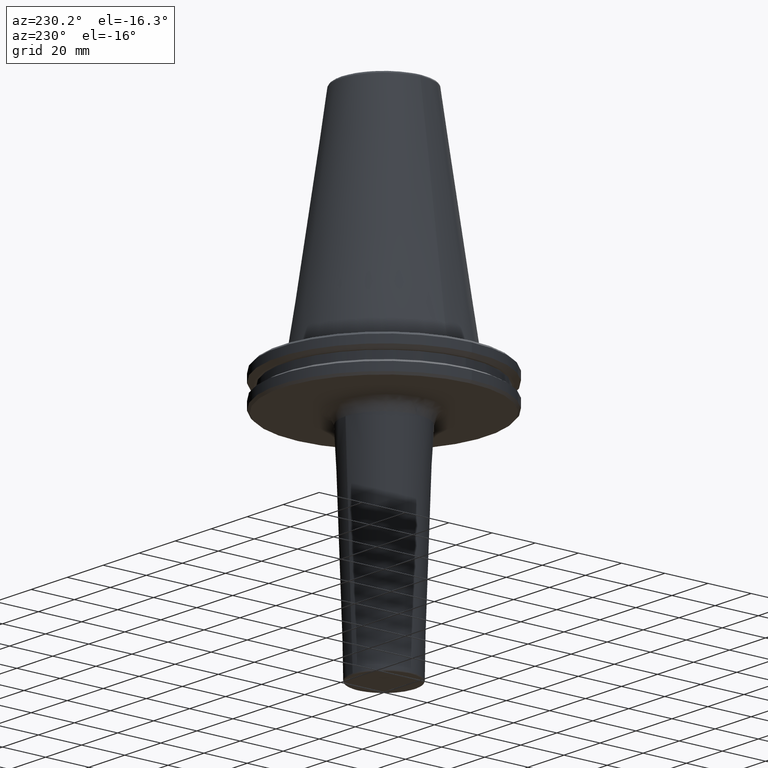
[diagram: clean part render]
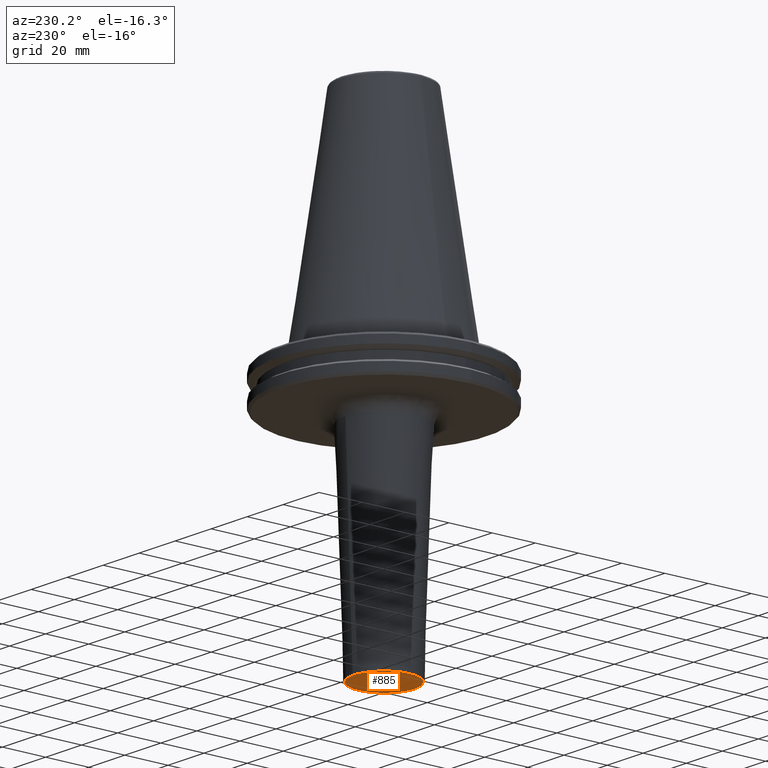
[diagram: same view with one face highlighted and labeled with its STEP entity id]
A machine part, auxiliary view. The second image highlights one B-rep face of the part: STEP entity #885.
In plain terms, the highlighted planar face has unit normal (0, 0, -1).
Its self-contained STEP definition (entity closure, byte-faithful):
#25 =( BOUNDED_CURVE ( )  B_SPLINE_CURVE ( 3, ( #1402, #123, #710, #1563 ),
 .UNSPECIFIED., .F., .F. ) 
 B_SPLINE_CURVE_WITH_KNOTS ( ( 4, 4 ),
 ( 0.0000000000000000000, 1.000000000000000000 ),
 .UNSPECIFIED. ) 
 CURVE ( )  GEOMETRIC_REPRESENTATION_ITEM ( )  RATIONAL_B_SPLINE_CURVE ( ( 1.000000000000000000, 0.3333333333333333700, 0.3333333333333333700, 1.000000000000000000 ) ) 
 REPRESENTATION_ITEM ( '' )  );
#62 = EDGE_CURVE ( 'NONE', #560, #1119, #799, .T. ) ;
#73 = CARTESIAN_POINT ( 'NONE',  ( 14.01719384373166500, 1.723856084815960800E-015, -119.1000000000000100 ) ) ;
#123 = CARTESIAN_POINT ( 'NONE',  ( 14.01719384373166300, 28.03438768746332600, -119.1000000000000200 ) ) ;
#374 = CARTESIAN_POINT ( 'NONE',  ( -14.01719384373166500, 0.0000000000000000000, -119.1000000000000100 ) ) ;
#490 = EDGE_LOOP ( 'NONE', ( #1548, #1348 ) ) ;
#560 = VERTEX_POINT ( 'NONE', #374 ) ;
#579 = CARTESIAN_POINT ( 'NONE',  ( -14.01719384373166500, 0.0000000000000000000, -119.1000000000000100 ) ) ;
#710 = CARTESIAN_POINT ( 'NONE',  ( -14.01719384373166500, 28.03438768746332600, -119.1000000000000200 ) ) ;
#759 = CARTESIAN_POINT ( 'NONE',  ( 14.01719384373166500, 1.723856084815960800E-015, -119.1000000000000100 ) ) ;
#799 =( BOUNDED_CURVE ( )  B_SPLINE_CURVE ( 3, ( #579, #871, #1057, #759 ),
 .UNSPECIFIED., .F., .F. ) 
 B_SPLINE_CURVE_WITH_KNOTS ( ( 4, 4 ),
 ( 0.0000000000000000000, 1.000000000000000000 ),
 .UNSPECIFIED. ) 
 CURVE ( )  GEOMETRIC_REPRESENTATION_ITEM ( )  RATIONAL_B_SPLINE_CURVE ( ( 1.000000000000000000, 0.3333333333333333700, 0.3333333333333333700, 1.000000000000000000 ) ) 
 REPRESENTATION_ITEM ( '' )  );
#835 = DIRECTION ( 'NONE',  ( -1.000000000000000000, 0.0000000000000000000, -0.0000000000000000000 ) ) ;
#871 = CARTESIAN_POINT ( 'NONE',  ( -14.01719384373166500, -28.03438768746332600, -119.1000000000000200 ) ) ;
#885 = ADVANCED_FACE ( 'NONE', ( #978 ), #1135, .T. ) ;
#978 = FACE_OUTER_BOUND ( 'NONE', #490, .T. ) ;
#1028 = DIRECTION ( 'NONE',  ( 0.0000000000000000000, 0.0000000000000000000, -1.000000000000000000 ) ) ;
#1057 = CARTESIAN_POINT ( 'NONE',  ( 14.01719384373166800, -28.03438768746332600, -119.1000000000000200 ) ) ;
#1119 = VERTEX_POINT ( 'NONE', #73 ) ;
#1135 = PLANE ( 'NONE',  #1482 ) ;
#1139 = CARTESIAN_POINT ( 'NONE',  ( 0.0000000000000000000, -14.50000000000000000, -119.1000000000000100 ) ) ;
#1348 = ORIENTED_EDGE ( 'NONE', *, *, #62, .F. ) ;
#1387 = EDGE_CURVE ( 'NONE', #1119, #560, #25, .T. ) ;
#1402 = CARTESIAN_POINT ( 'NONE',  ( 14.01719384373166500, 1.723856084815960800E-015, -119.1000000000000100 ) ) ;
#1482 = AXIS2_PLACEMENT_3D ( 'NONE', #1139, #1028, #835 ) ;
#1548 = ORIENTED_EDGE ( 'NONE', *, *, #1387, .F. ) ;
#1563 = CARTESIAN_POINT ( 'NONE',  ( -14.01719384373166500, 0.0000000000000000000, -119.1000000000000100 ) ) ;